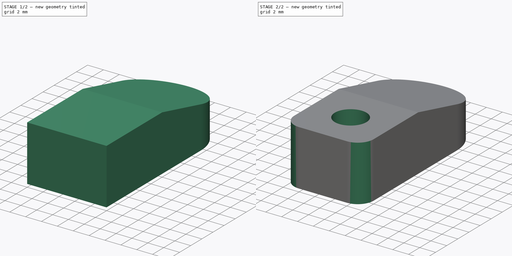
[diagram: build sequence overview — one tinted view per stage of 2, left to right]
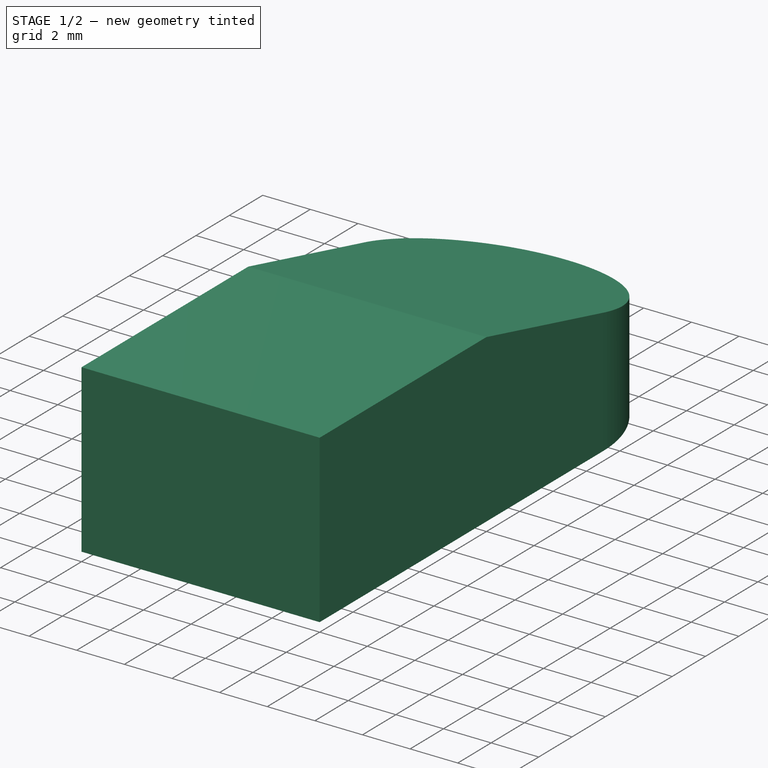
[diagram: stage 1 of 2 — iso view after this stage's code; geometry added in this stage tinted green]
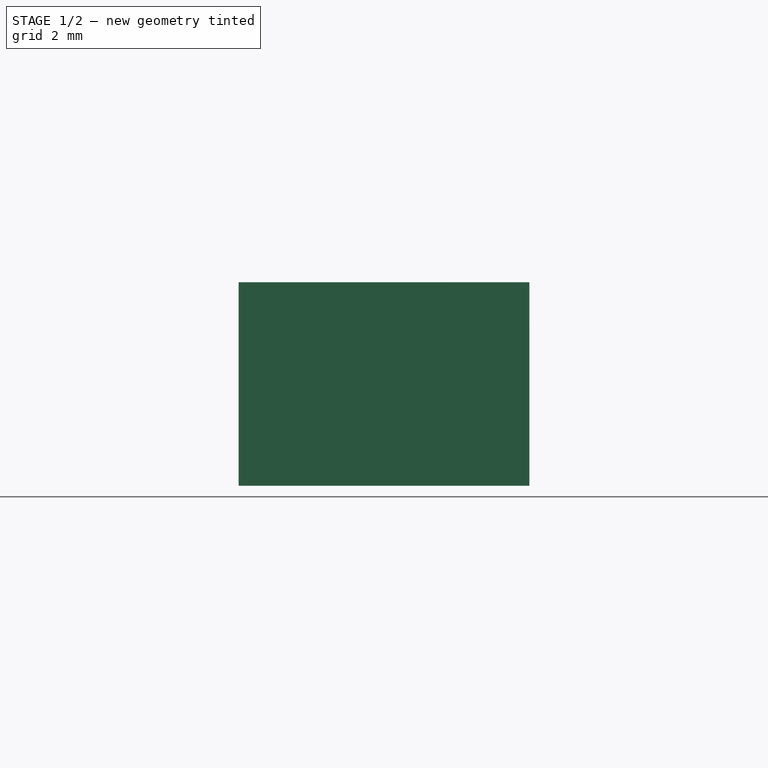
[diagram: stage 1 of 2 — front view after this stage's code; geometry added in this stage tinted green]
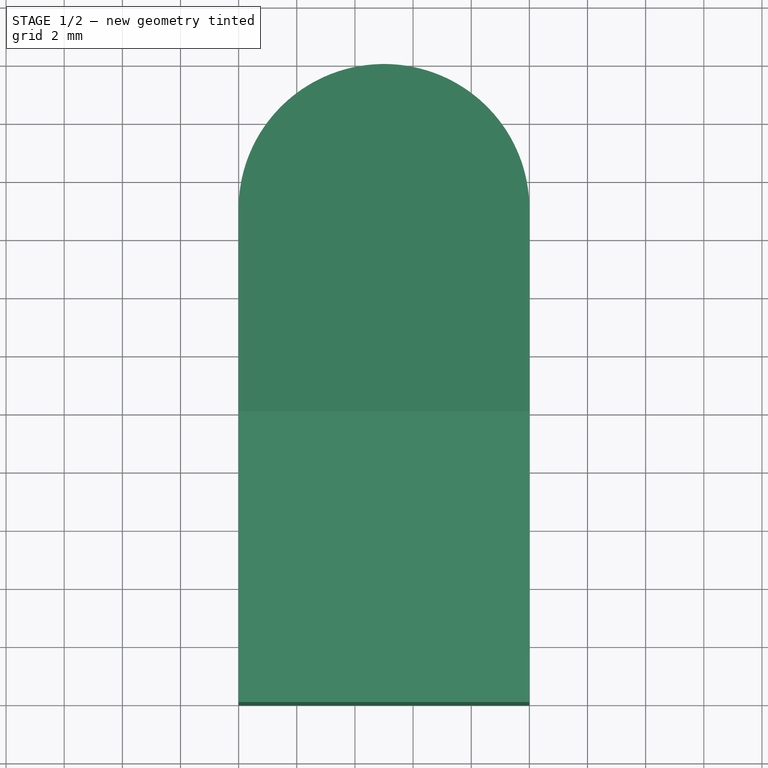
[diagram: stage 1 of 2 — top view after this stage's code; geometry added in this stage tinted green]
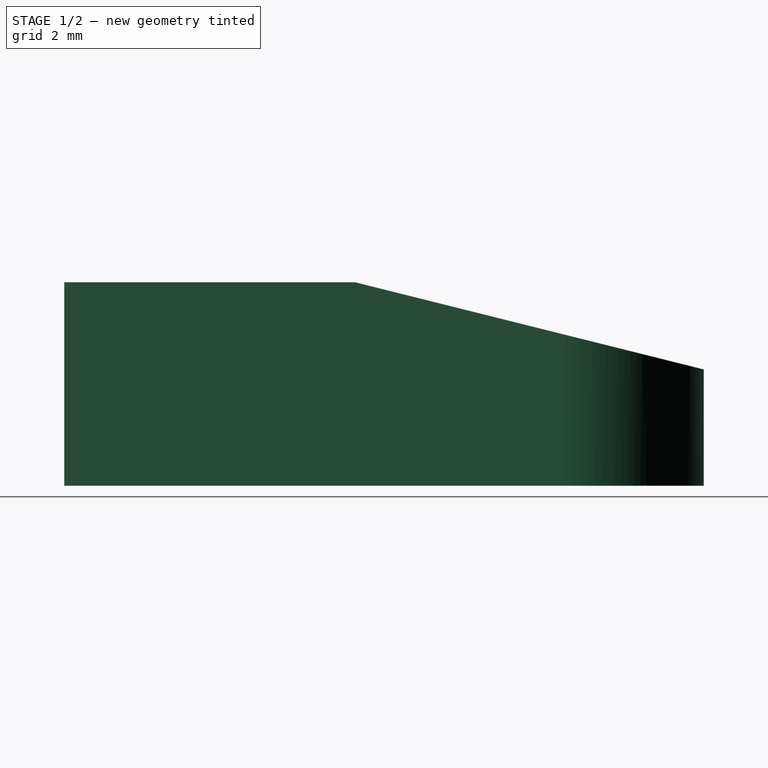
[diagram: stage 1 of 2 — right view after this stage's code; geometry added in this stage tinted green]
FCSTD DOCUMENT
Label: glass_finger
objects: Sketcher::SketchObject×3, PartDesign::Pocket×2, PartDesign::Pad×1, PartDesign::Fillet×1
note: 10 computed .brp shape members not serialized (recipe doc carries the construction recipe); baked Part::Feature solids carry a one-line shape summary decoded from their .brp

FEATURE [Sketcher::SketchObject] Sketch
  sketch-geometry (4):
    g0: LineSegment StartX=0 StartY=0 StartZ=0 EndX=10 EndY=0 EndZ=0
    g1: LineSegment StartX=10 StartY=0 StartZ=0 EndX=10 EndY=17 EndZ=0
    g2: LineSegment StartX=0 StartY=17 StartZ=0 EndX=0 EndY=0 EndZ=0
    g3: ArcOfCircle CenterX=5 CenterY=17 CenterZ=0 NormalX=0 NormalY=0 NormalZ=1 Radius=5 StartAngle=6.28318 EndAngle=9.42478
  constraints (12):
    c: Coincident(g0,g1)
    c: Coincident(g2,g0)
    c: Horizontal(g0)
    c: Vertical(g1)
    c: Vertical(g2)
    c: Coincident(g3,g2)
    c: Coincident(g3,g1)
    c: Tangent(g3,g1)
    c: Tangent(g3,g2)
    c: DistanceX(g0) = 10
    c: DistanceY(g1) = 17
    c: Coincident(g0,g-1)
FEATURE [PartDesign::Pad] Pad
  Length = 7
  Length2 = 100
  Sketch = -> Sketch
  Type = 0
FEATURE [Sketcher::SketchObject] Sketch001
  ExternalGeometry = -> [Pad]
  Placement = pos=(10,0,0) rot=(0.57735,0.57735,0.57735;2.0944rad)
  Support = -> Pad [Face2]
  sketch-geometry (5):
    g0: LineSegment StartX=10 StartY=8 StartZ=0 EndX=23 EndY=8 EndZ=0
    g1: LineSegment StartX=23 StartY=8 StartZ=0 EndX=23 EndY=3.75 EndZ=0
    g2: LineSegment StartX=23 StartY=3.75 StartZ=0 EndX=10 EndY=7 EndZ=0
    g3: LineSegment StartX=10 StartY=7 StartZ=0 EndX=10 EndY=8 EndZ=0
    g4: GeomPoint [constr] X=22 Y=4 Z=0
  constraints (14):
    c: Coincident(g0,g1)
    c: Coincident(g1,g2)
    c: Coincident(g2,g3)
    c: Coincident(g3,g0)
    c: Horizontal(g0)
    c: Vertical(g1)
    c: Vertical(g3)
    c: DistanceX(g-3,g0) = 10
    c: PointOnObject(g2,g-3)
    c: DistanceX(g-3,g1) = 6
    c: DistanceY(g3) = 1
    c: PointOnObject(g4,g2)
    c: DistanceY(g4) = 4
    c: DistanceX(g4,g-3) = -5
FEATURE [PartDesign::Pocket] Pocket
  Length = 5
  Sketch = -> Sketch001
  Type = 1
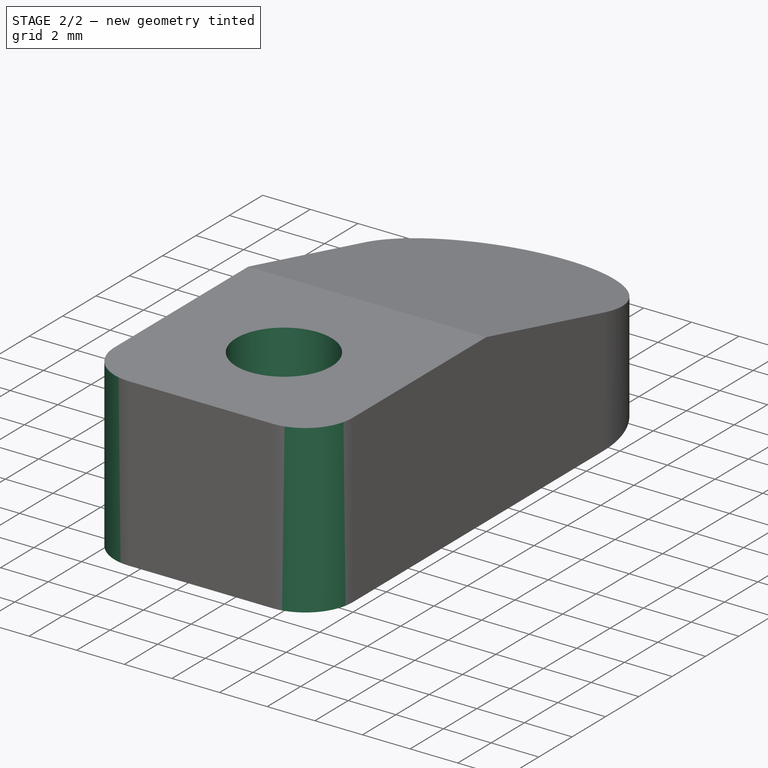
[diagram: stage 2 of 2 — iso view after this stage's code; geometry added in this stage tinted green]
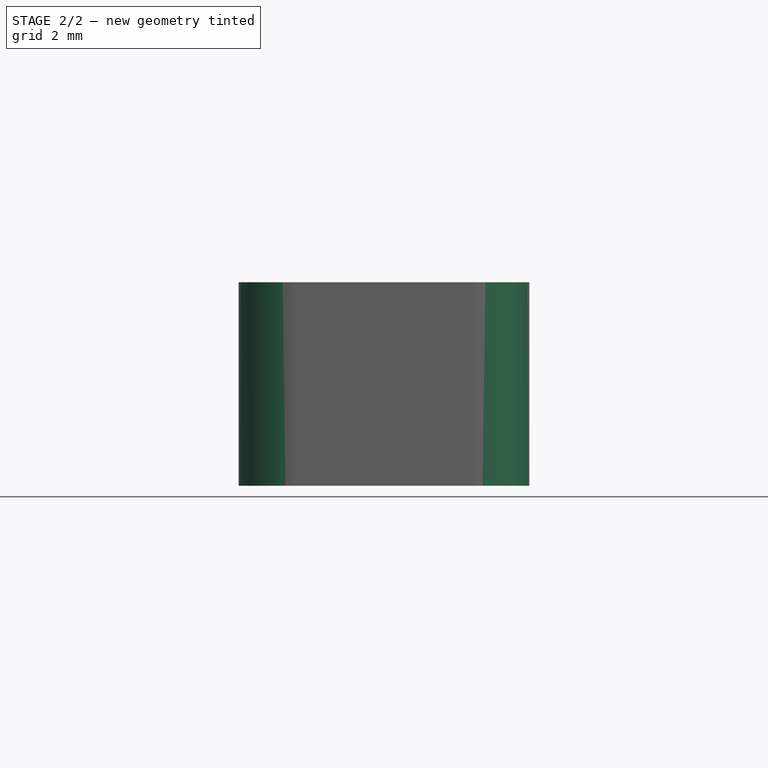
[diagram: stage 2 of 2 — front view after this stage's code; geometry added in this stage tinted green]
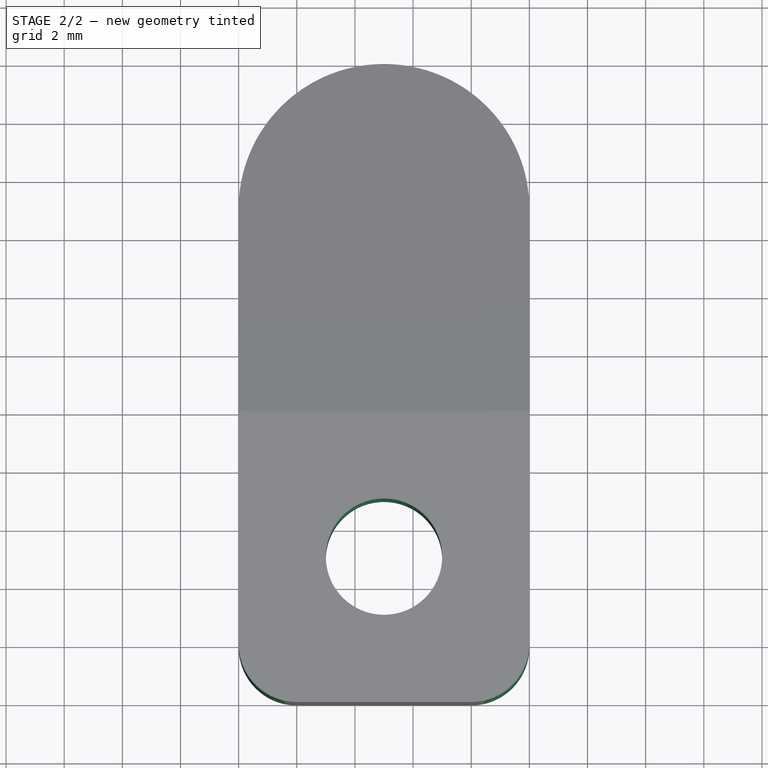
[diagram: stage 2 of 2 — top view after this stage's code; geometry added in this stage tinted green]
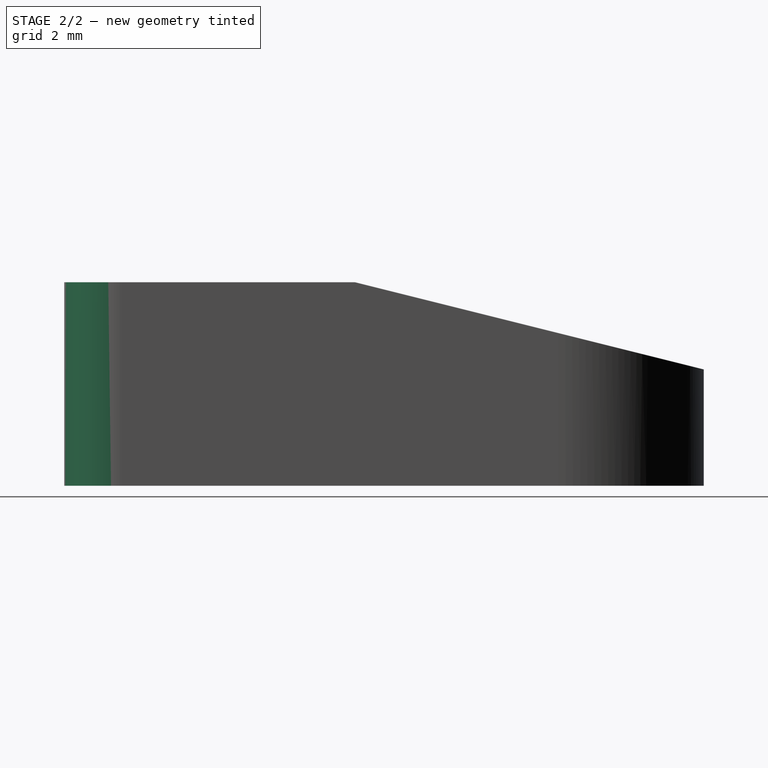
[diagram: stage 2 of 2 — right view after this stage's code; geometry added in this stage tinted green]
FEATURE [Sketcher::SketchObject] Sketch002
  ExternalGeometry = -> [Pocket]
  Placement = pos=(0,0,7) rot=(0,0,1;0rad)
  Support = -> Pocket [Face5]
  sketch-geometry (3):
    g0: Circle CenterX=5 CenterY=5 CenterZ=0 NormalX=0 NormalY=0 NormalZ=1 Radius=2
    g1: LineSegment [constr] StartX=5 StartY=10 StartZ=0 EndX=5 EndY=5 EndZ=0
    g2: LineSegment [constr] StartX=5 StartY=5 StartZ=0 EndX=10 EndY=5 EndZ=0
  constraints (7):
    c: Coincident(g2,g0)
    c: Coincident(g0,g1)
    c: Vertical(g1)
    c: Horizontal(g2)
    c: Symmetric(g-4,g-4,g2)
    c: Symmetric(g-3,g-3,g1)
    c: Radius(g0) = 2
FEATURE [PartDesign::Pocket] Pocket001
  Length = 5
  Sketch = -> Sketch002
  Type = 1
FEATURE [PartDesign::Fillet] Fillet
  Base = -> Pocket001 [Edge1,Edge2]
  Radius = 2
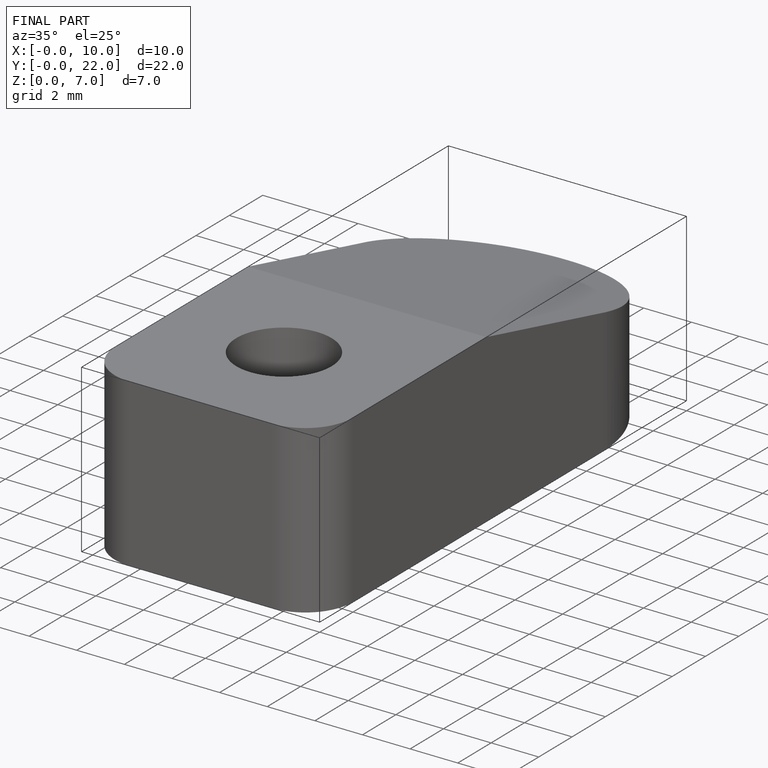
[diagram: finished part — iso view with bounding-box wireframe]
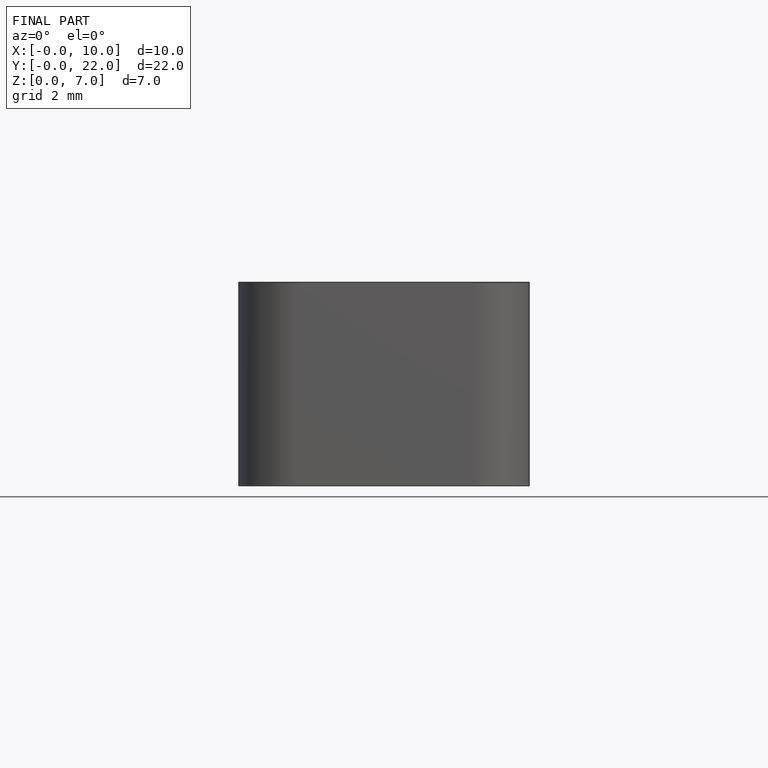
[diagram: finished part — front view with bounding-box wireframe]
